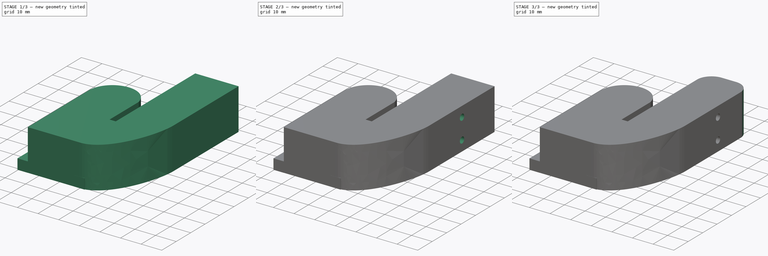
[diagram: build sequence overview — one tinted view per stage of 3, left to right]
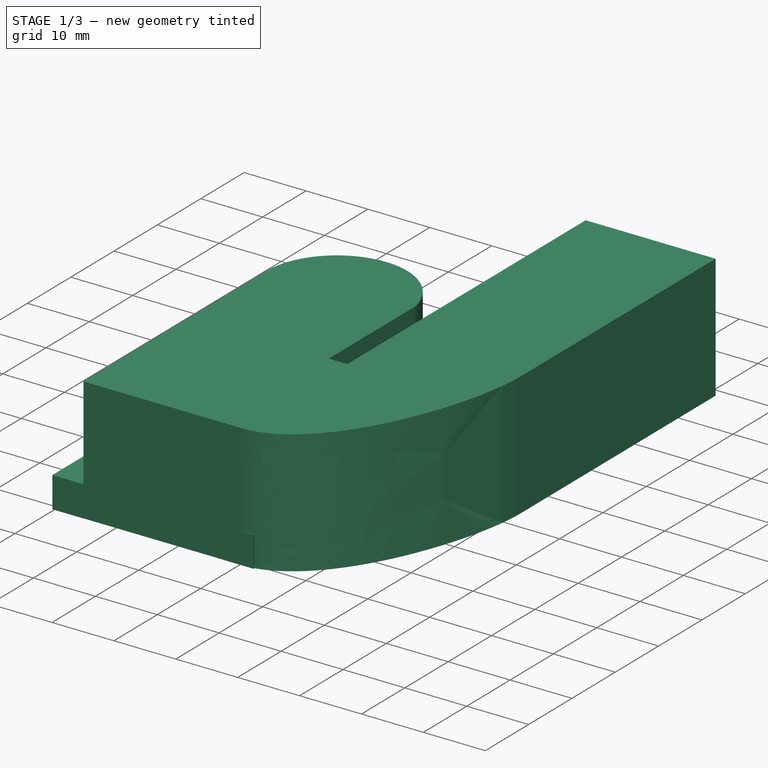
[diagram: stage 1 of 3 — iso view after this stage's code; geometry added in this stage tinted green]
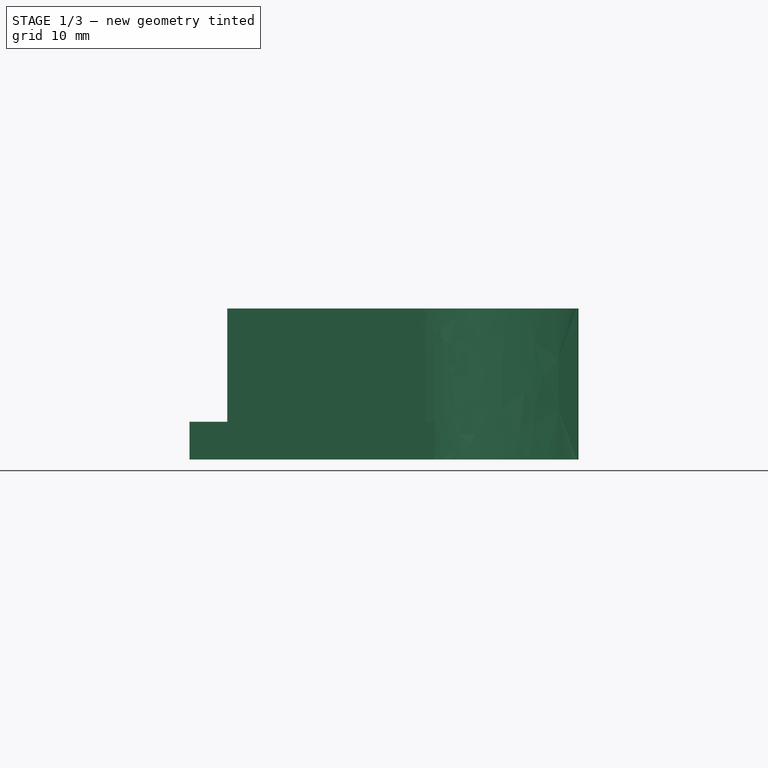
[diagram: stage 1 of 3 — front view after this stage's code; geometry added in this stage tinted green]
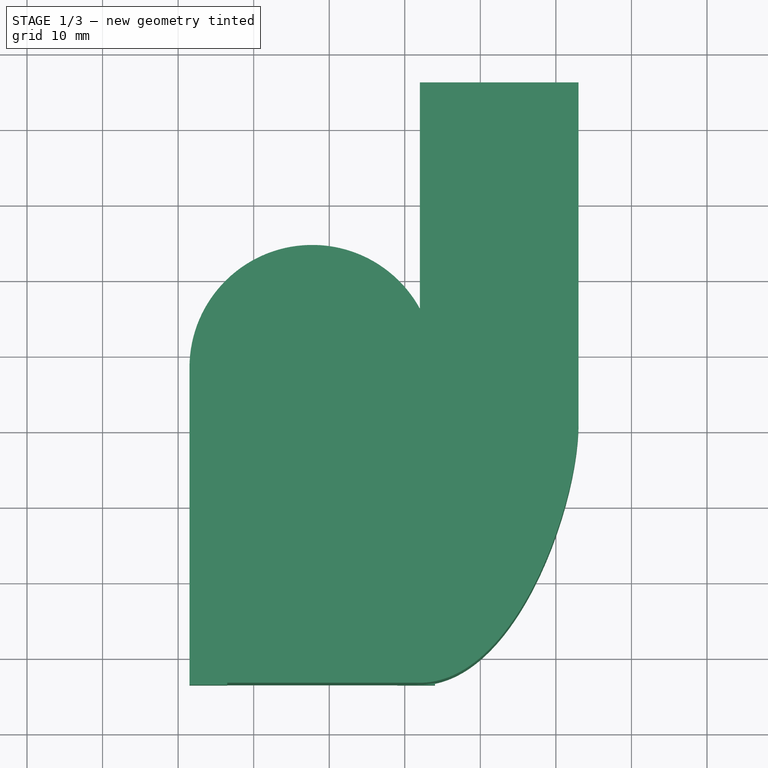
[diagram: stage 1 of 3 — top view after this stage's code; geometry added in this stage tinted green]
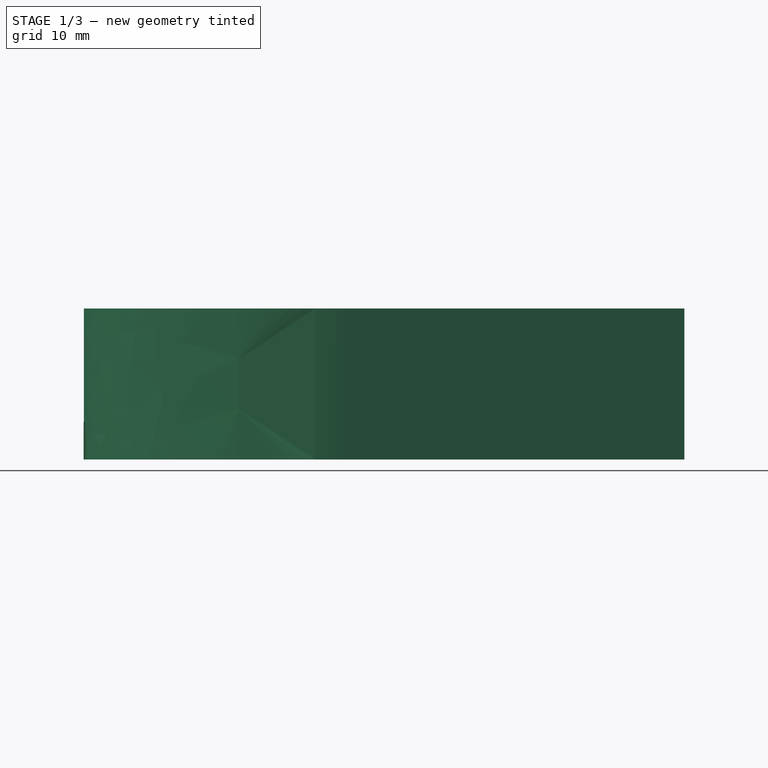
[diagram: stage 1 of 3 — right view after this stage's code; geometry added in this stage tinted green]
FCSTD DOCUMENT  (FreeCAD 1.0R39285 (Git))
Label: vase hook
License: All rights reserved
LicenseURL: https://en.wikipedia.org/wiki/All_rights_reserved
objects: PartDesign::Body×3, Sketcher::SketchObject×3, PartDesign::Pad×2, Image::ImagePlane×1, PartDesign::AdditiveBox×1, PartDesign::Pocket×1, PartDesign::Fillet×1
note: 24 computed .brp shape members not serialized (recipe doc carries the construction recipe); baked Part::Feature solids carry a one-line shape summary decoded from their .brp

FEATURE [PartDesign::Body] Body001  label="Body"
  AllowCompound = false
  Group = -> [Box]
  Origin = -> Origin001
  Placement = pos=(23.05,-34.75,0) rot=(0,0,1;0rad)
  Tip = -> Box
FEATURE [Sketcher::SketchObject] Sketch
  ArcFitTolerance = 1e-06
  AttachmentSupport = -> [XY_Plane]
  FullyConstrained = false
  MakeInternals = false
  MapMode = 5
  sketch-geometry (18):
    g0: LineSegment StartX=23 StartY=46 StartZ=0 EndX=2 EndY=46 EndZ=0
    g1: LineSegment StartX=2 StartY=46 StartZ=0 EndX=2 EndY=-9 EndZ=0
    g2: LineSegment StartX=-1 StartY=-9 StartZ=0 EndX=2 EndY=-9 EndZ=0
    g3: LineSegment StartX=-1 StartY=11 StartZ=0 EndX=-1 EndY=-9 EndZ=0
    g4: LineSegment StartX=-23.5 StartY=8.52936 StartZ=0 EndX=-23.5 EndY=-33.4706 EndZ=0
    g5: LineSegment StartX=-23.5 StartY=-33.4706 StartZ=0 EndX=1.5 EndY=-33.4706 EndZ=0
    g6: LineSegment StartX=23 StartY=46 StartZ=0 EndX=23 EndY=1 EndZ=0
    g7: ArcOfCircle CenterX=-12.1445 CenterY=8.80402 CenterZ=0 NormalX=0 NormalY=0 NormalZ=1 AngleXU=0 Radius=11.3588 StartAngle=0.194553 EndAngle=3.16578
    g8: GeomPoint [constr] X=1.5 Y=-33.4706 Z=0
    g9: GeomPoint [constr] X=23 Y=1 Z=0
    g10: GeomPoint [constr] X=1.5 Y=-33.4706 Z=0
    g11-g14: Circle [constr] x4 (B-spline internal-alignment scaffolding for g15; pole/knot coordinates omitted)
    g15: BSplineCurve PolesCount=4 KnotsCount=2 Degree=3 IsPeriodic=0
    g16: GeomPoint [constr] X=1.5 Y=-33.4706 Z=0
    g17: GeomPoint [constr] X=23 Y=1 Z=0
  constraints (39):
    c: Distance(g0) = 21
    c: Horizontal(g0)
    c: Distance(g1) = 55
    c: Vertical(g1)
    c: Distance(g2) = 3
    c: Horizontal(g2)
    c: Distance(g3) = 20
    c: Vertical(g3)
    c: Distance(g4) = 42
    c: Vertical(g4)
    c: Distance(g5) = 25
    c: Horizontal(g5)
    c: Distance(g6) = 45
    c: Vertical(g6)
    c: Distance(g1,g-2) = 2
    c: Distance(g1,g-1) = 9
    c: Coincident(g1,g2)
    c: Coincident(g2,g3)
    c: Coincident(g7,g3)
    c: DistanceX(g7,g3) = 22.5
    c: Distance(g7,g-1) = 25
    c: Distance(g7,g-1) = 15
    c: Coincident(g7,g4)
    c: Coincident(g4,g5)
    c: Coincident(g1,g0)
    c: Coincident(g0,g6)
    c: Weight(g11) = 1
    c: Equal(g11,g12)
    c: Equal(g11,g13)
    c: Equal(g11,g14)
    c: InternalAlignment(g11-g14 -> g15) x4
    c: InternalAlignment(g16,g15)
    c: InternalAlignment(g17,g15)
    c: Coincident(g11,g5)
    c: Coincident(g6,g15)
    c: DistanceX(g15,g12) = 13
    c: Distance(g13,g-1) = 10
    c: DistanceX(g-1,g13) = 23
    c: DistanceY(g12,g-1) = 34
FEATURE [PartDesign::Pad] Pad
  Direction = (0,0,1)
  Length = 20
  Length2 = 10
  Profile = -> Sketch
  ReferenceAxis = -> Sketch [N_Axis]
  Refine = true
  Suppressed = false
  Type = 0
FEATURE [PartDesign::Body] Body  label="shape"
  AllowCompound = false
  Group = -> [Sketch,Pad,Sketch001,Pocket,Fillet]
  Origin = -> Origin
  Tip = -> Fillet
FEATURE [Sketcher::SketchObject] Sketch002
  ArcFitTolerance = 1e-06
  AttachmentSupport = -> [XY_Plane002]
  FullyConstrained = true
  MakeInternals = false
  MapMode = 5
  sketch-geometry (14):
    g0-g3: Circle [constr] x4 (B-spline internal-alignment scaffolding for g4; pole/knot coordinates omitted)
    g4: BSplineCurve PolesCount=4 KnotsCount=2 Degree=3 IsPeriodic=0
    g5: GeomPoint [constr] X=-23.5 Y=8.5 Z=0
    g6: GeomPoint [constr] X=-1 Y=8.5 Z=0
    g7: LineSegment StartX=-1 StartY=-33.5 StartZ=0 EndX=-1 EndY=8.5 EndZ=0
    g8: LineSegment StartX=-23.5 StartY=8.5 StartZ=0 EndX=-23.5 EndY=-33.5 EndZ=0
    g9: LineSegment StartX=-1 StartY=-33.5 StartZ=0 EndX=4 EndY=-33.5 EndZ=0
    g10: ArcOfCircle CenterX=-12.25 CenterY=8.5 CenterZ=0 NormalX=0 NormalY=0 NormalZ=1 AngleXU=0 Radius=16.25 StartAngle=0 EndAngle=3.14159
    g11: LineSegment StartX=4 StartY=8.5 StartZ=0 EndX=4 EndY=-33.5 EndZ=0
    g12: LineSegment StartX=-28.5 StartY=8.49999 StartZ=0 EndX=-28.5 EndY=-33.5 EndZ=0
    g13: LineSegment StartX=-23.5 StartY=-33.5 StartZ=0 EndX=-28.5 EndY=-33.5 EndZ=0
  constraints (36):
    c: Weight(g0) = 1
    c: Equal(g0,g1)
    c: Equal(g0,g2)
    c: Equal(g0,g3)
    c: InternalAlignment(g0-g3 -> g4) x4
    c: InternalAlignment(g5,g4)
    c: InternalAlignment(g6,g4)
    c: Distance(g4,g-1) = 8.5
    c: DistanceY(g-1,g4) = 8.5
    c: DistanceX(g4,g-1) = 1
    c: DistanceX(g4,g-1) = 23.5
    c: Distance(g1,g-2) = 23
    c: Distance(g2,g-2) = 1
    c: DistanceY(g-1,g1) = 24
    c: DistanceY(g-1,g2) = 24
    c: Vertical(g7)
    c: Vertical(g8)
    c: Coincident(g4,g8)
    c: Coincident(g4,g7)
    c: DistanceY(g7,g7) = 42
    c: DistanceY(g8,g8) = 42
    c: Distance(g9) = 5
    c: Coincident(g9,g7)
    c: Horizontal(g9)
    c: Radius(g10) = 16.25
    c: Angle(g10) = 3.14159
    c: Distance(g10,g-1) = 8.5
    c: DistanceY(g-1,g10) = 8.5
    c: DistanceX(g10,g4) = 5
    c: Vertical(g12)
    c: Coincident(g10,g11)
    c: Coincident(g9,g11)
    c: Horizontal(g13)
    c: Coincident(g8,g13)
    c: Coincident(g12,g10)
    c: Coincident(g13,g12)
FEATURE [PartDesign::Pad] Pad001
  Direction = (0,0,1)
  Length = 5
  Length2 = 10
  Profile = -> Sketch002
  ReferenceAxis = -> Sketch002 [N_Axis]
  Refine = true
  Suppressed = false
  Type = 0
FEATURE [PartDesign::Body] Body002  label="cover shape"
  AllowCompound = false
  Group = -> [Sketch002,Pad001]
  Origin = -> Origin002
  Tip = -> Pad001
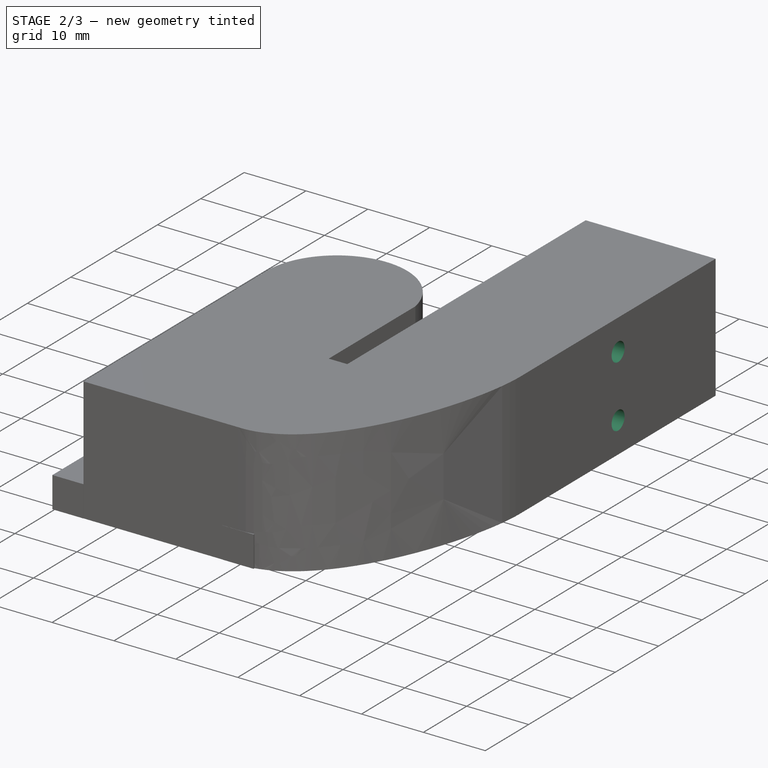
[diagram: stage 2 of 3 — iso view after this stage's code; geometry added in this stage tinted green]
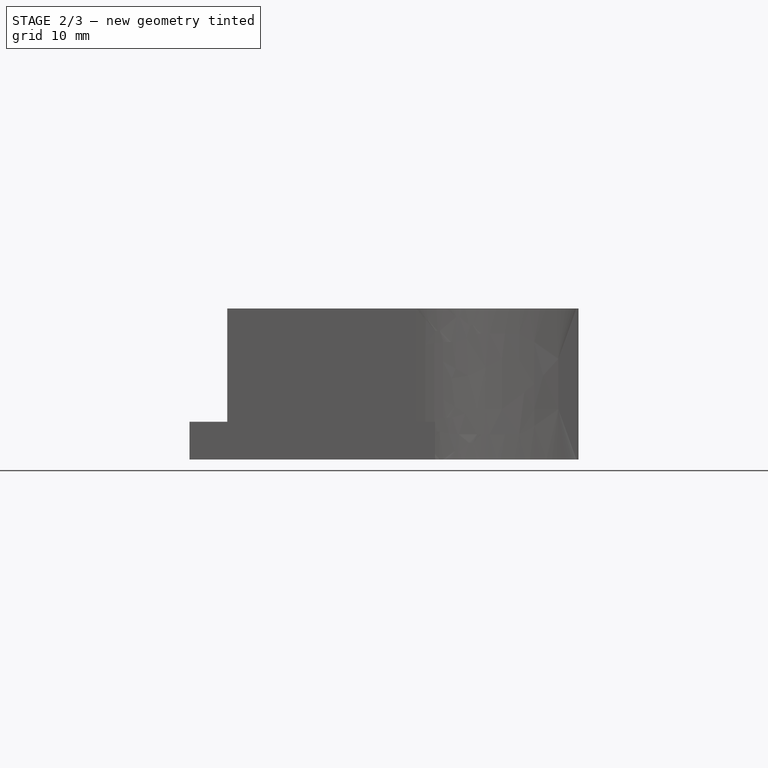
[diagram: stage 2 of 3 — front view after this stage's code; geometry added in this stage tinted green]
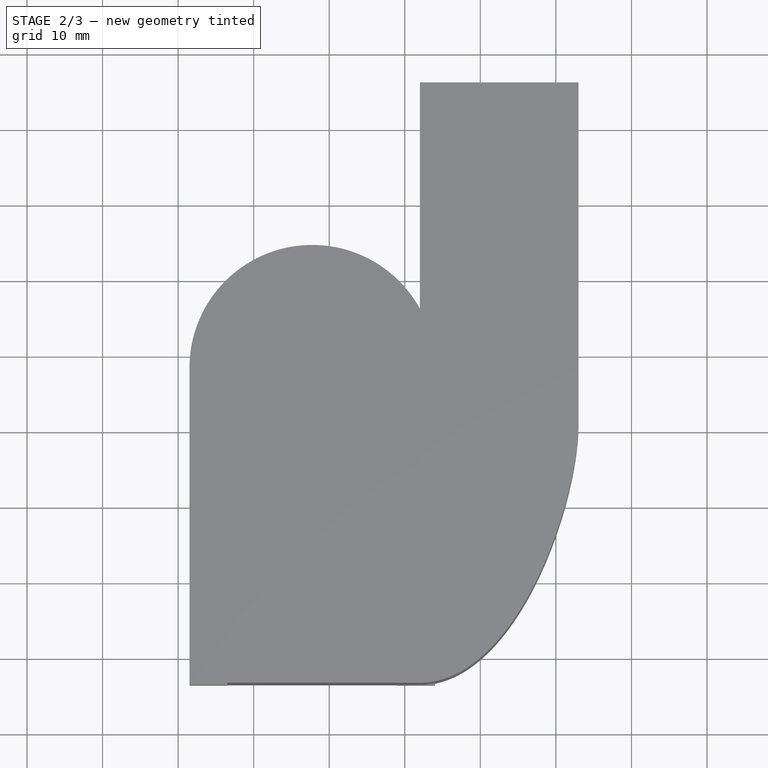
[diagram: stage 2 of 3 — top view after this stage's code; geometry added in this stage tinted green]
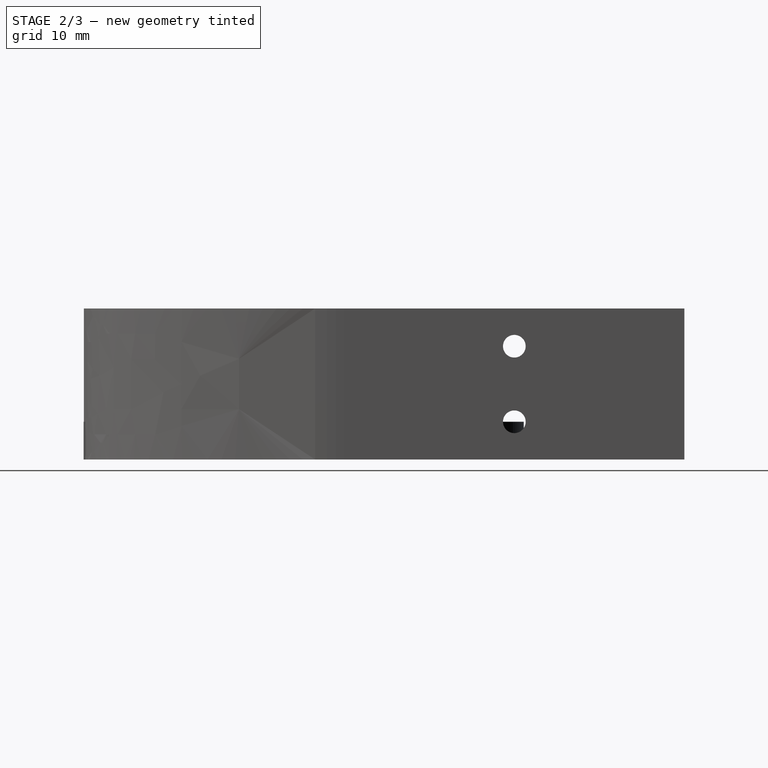
[diagram: stage 2 of 3 — right view after this stage's code; geometry added in this stage tinted green]
FEATURE [Sketcher::SketchObject] Sketch001
  ArcFitTolerance = 1e-06
  AttachmentSupport = -> [Pad]
  FullyConstrained = true
  MakeInternals = false
  MapMode = 5
  Placement = pos=(2,0,0) rot=(0.57735,-0.57735,-0.57735;2.0944rad)
  sketch-geometry (2):
    g0: Circle CenterX=-23.5 CenterY=15 CenterZ=0 NormalX=0 NormalY=0 NormalZ=1 AngleXU=0 Radius=1.5
    g1: Circle CenterX=-23.5 CenterY=5 CenterZ=0 NormalX=0 NormalY=0 NormalZ=1 AngleXU=0 Radius=1.5
  constraints (6):
    c: Distance(g0,g-2) = 23.5
    c: DistanceY(g-1,g0) = 15
    c: Diameter(g0) = 3
    c: Diameter(g1) = 3
    c: DistanceY(g-1,g1) = 5
    c: Distance(g1,g-2) = 23.5
FEATURE [PartDesign::Pocket] Pocket
  BaseFeature = -> Pad
  Direction = (1,0,0)
  Length = 21
  Length2 = 5
  Profile = -> Sketch001
  ReferenceAxis = -> Sketch001 [N_Axis]
  Refine = true
  Suppressed = false
  Type = 0
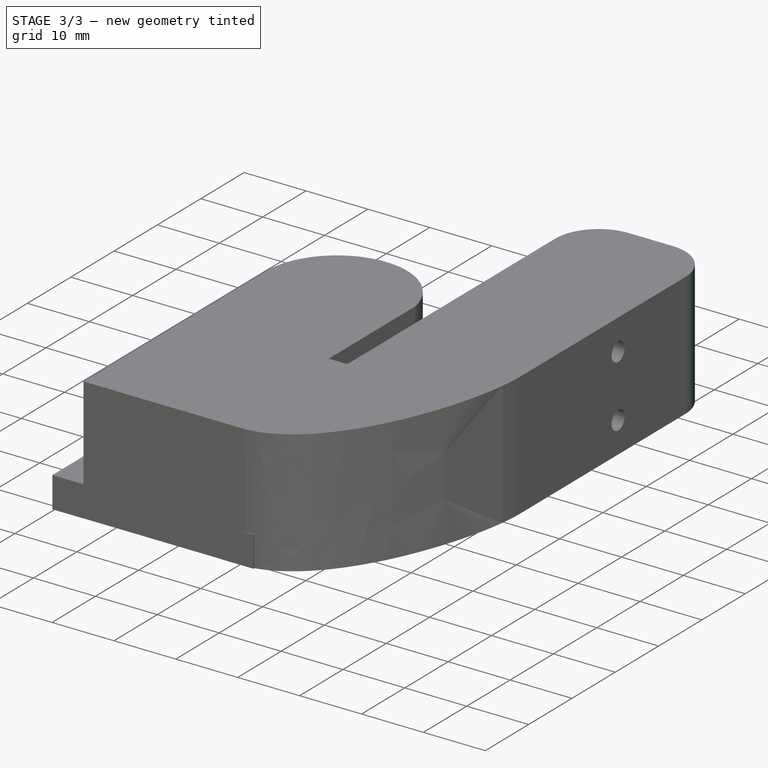
[diagram: stage 3 of 3 — iso view after this stage's code; geometry added in this stage tinted green]
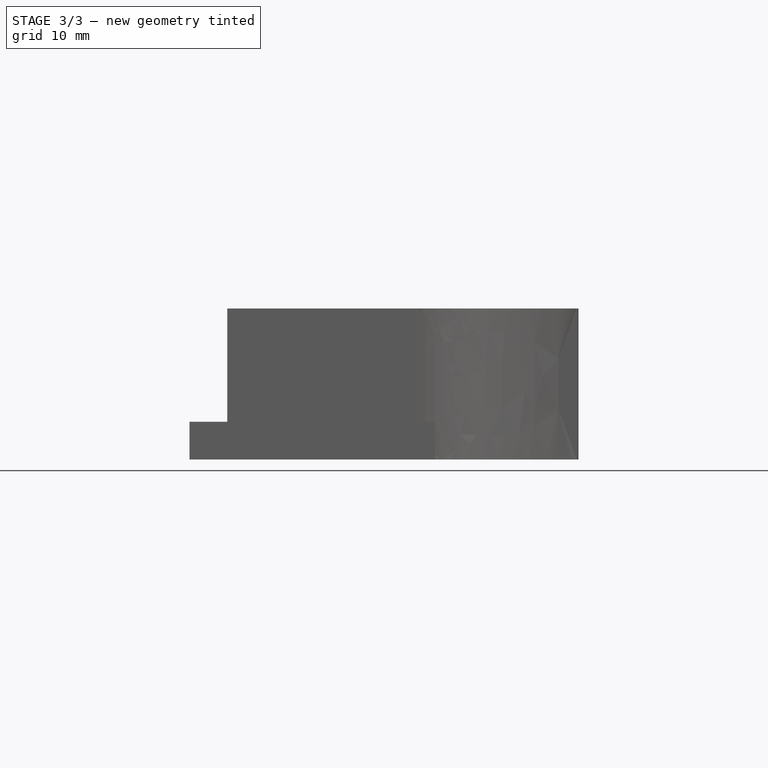
[diagram: stage 3 of 3 — front view after this stage's code; geometry added in this stage tinted green]
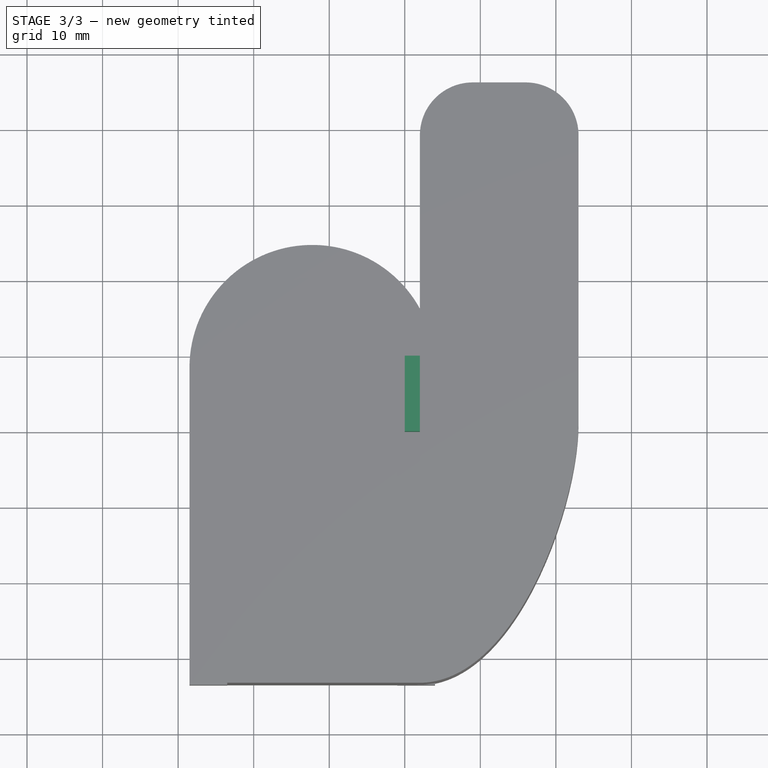
[diagram: stage 3 of 3 — top view after this stage's code; geometry added in this stage tinted green]
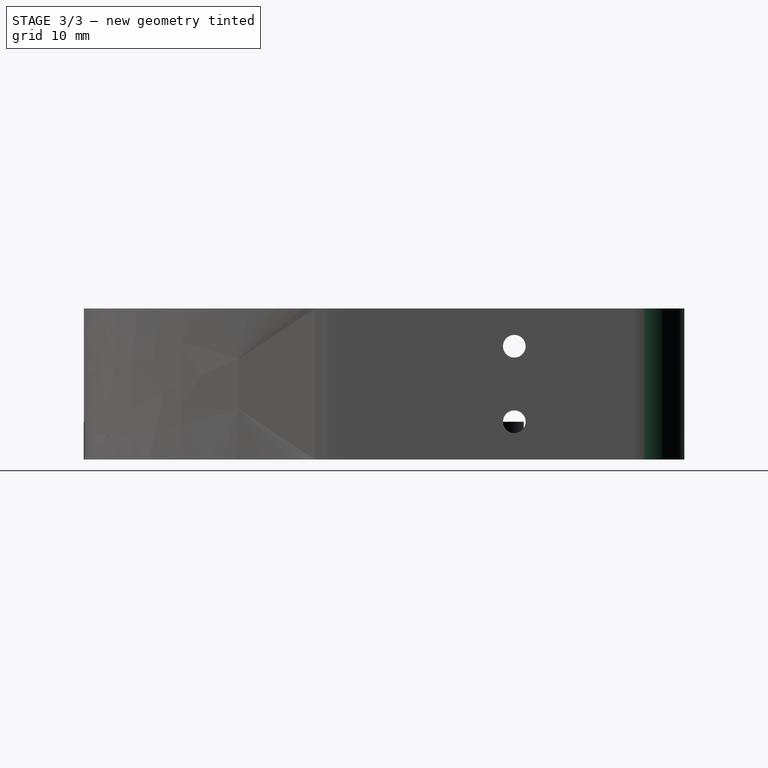
[diagram: stage 3 of 3 — right view after this stage's code; geometry added in this stage tinted green]
FEATURE [Image::ImagePlane] img
  XSize = 79.7562
  YSize = 122.936
FEATURE [PartDesign::AdditiveBox] Box
  AttacherType = Attacher::AttachEngine3D
  Height = 10
  Length = 10
  Refine = true
  Suppressed = false
  Width = 10
FEATURE [PartDesign::Fillet] Fillet
  Base = -> Pocket [Edge1,Edge2]
  BaseFeature = -> Pocket
  Radius = 7
  Refine = true
  SupportTransform = false
  Suppressed = false
  UseAllEdges = false
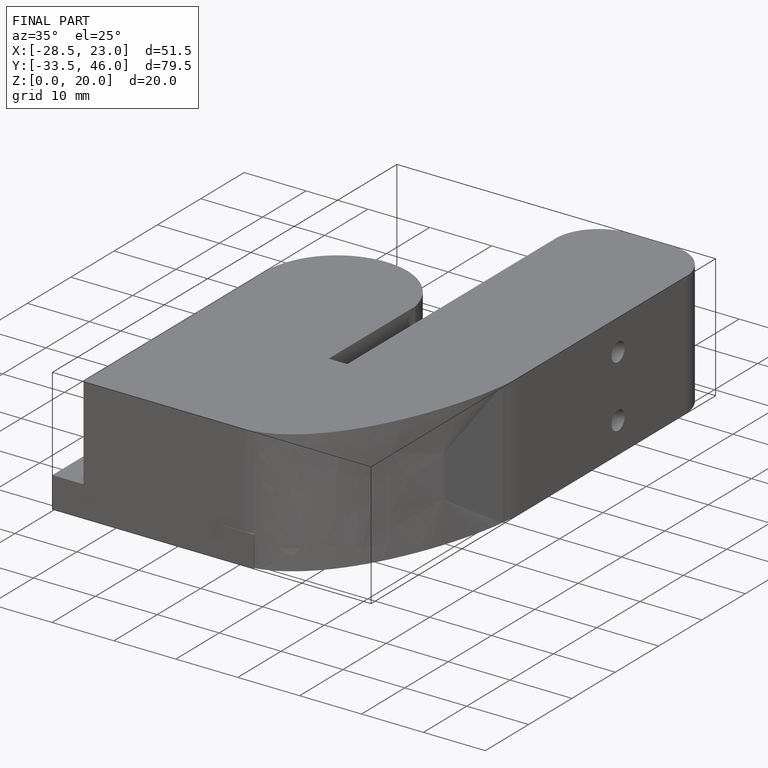
[diagram: finished part — iso view with bounding-box wireframe]
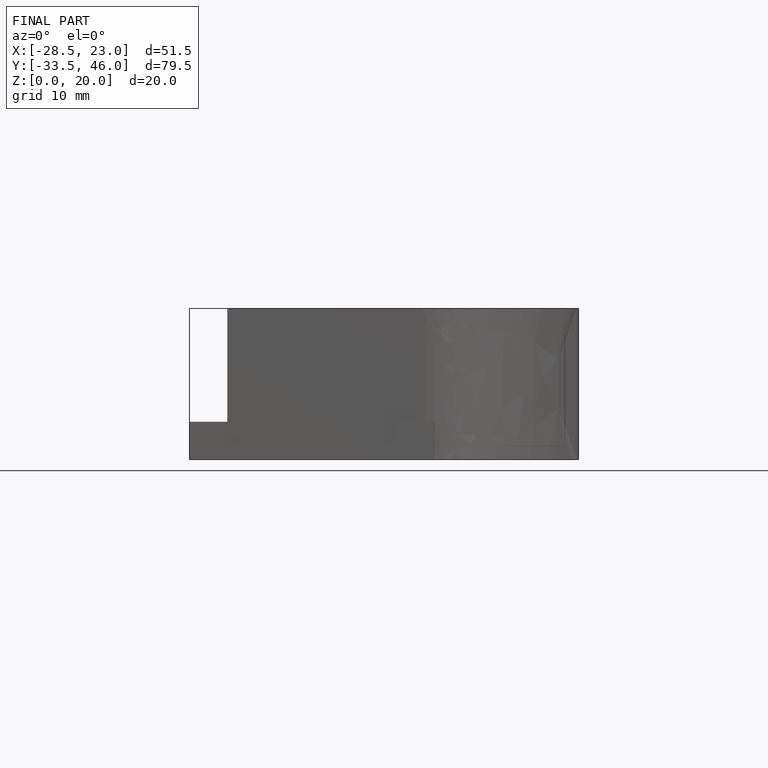
[diagram: finished part — front view with bounding-box wireframe]
